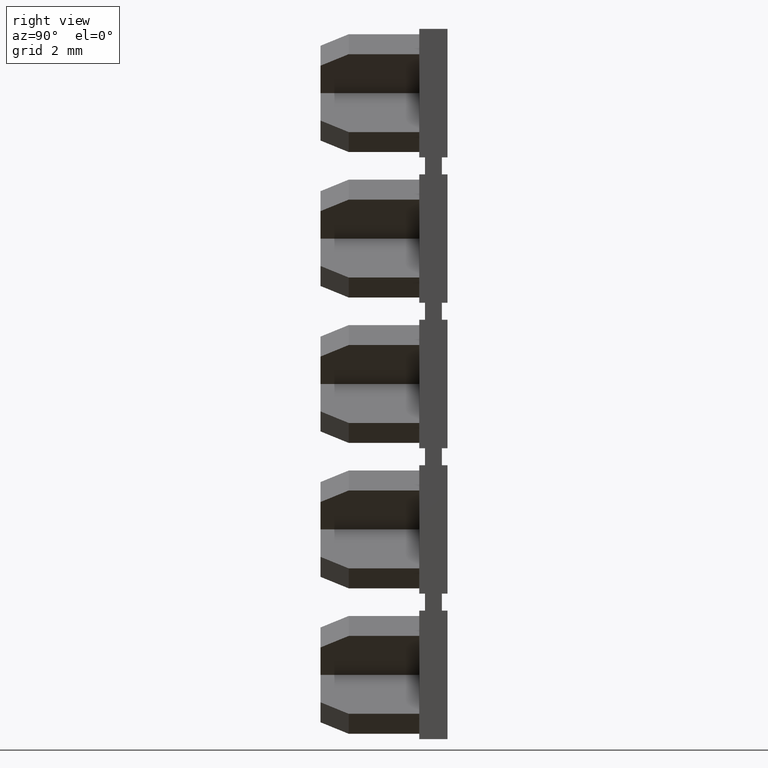
[diagram: clean part render]
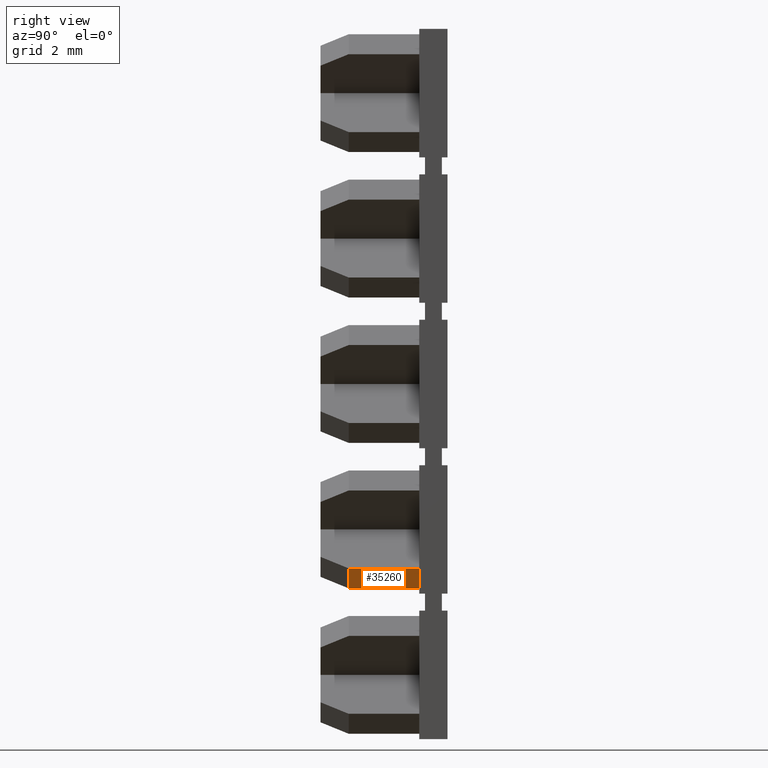
[diagram: same view with one face highlighted and labeled with its STEP entity id]
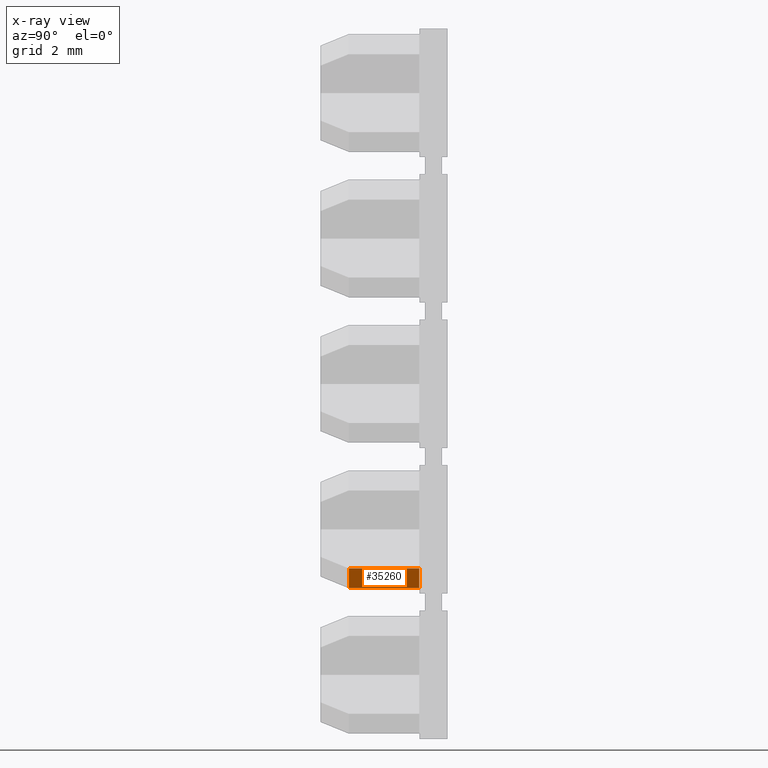
[diagram: x-ray of the same camera — body ghosted, the highlighted face saturated]
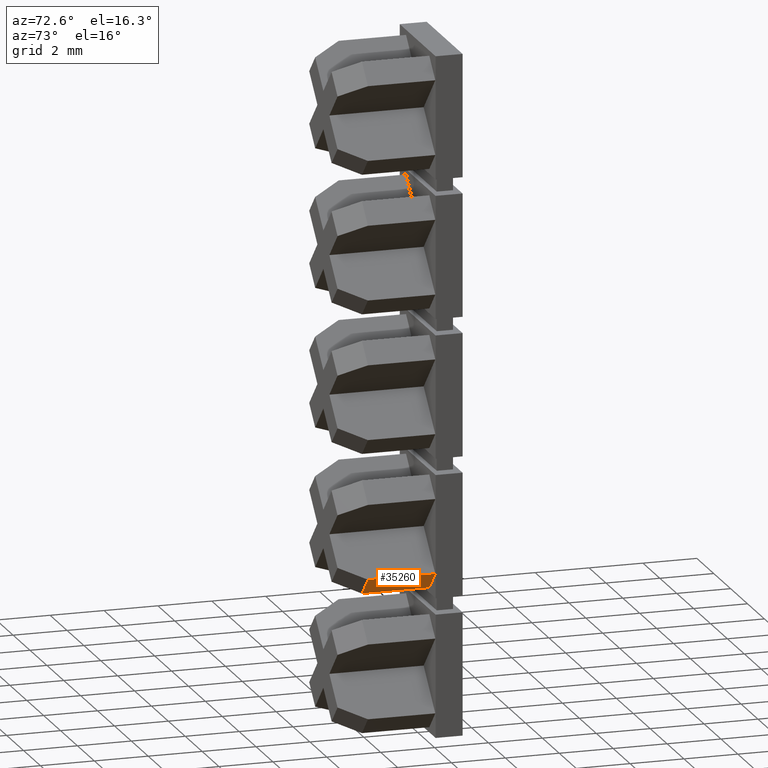
[diagram: same view with one face highlighted and labeled with its STEP entity id]
A machine part, right view. The second image highlights one B-rep face of the part: STEP entity #35260.
The next image is the same camera in x-ray: the body ghosted, the highlighted face saturated — about 0% of this face is hidden behind the body in this view.
A second angle (auxiliary view) of the same face is appended — the face is thin or edge-on in the first view.
In plain terms, the highlighted planar face has unit normal (0.7071, 0, -0.7071).
Its self-contained STEP definition (entity closure, byte-faithful):
#1220=CARTESIAN_POINT('',(16.5431323410372,-9.15000000000323,
54.8411417766862));
#1230=VERTEX_POINT('',#1220);
#1260=CARTESIAN_POINT('',(16.5431323410375,-11.4157999825918,
54.8411417766862));
#1270=DIRECTION('',(1.15463194561016E-13,-1.,-0.));
#1280=VECTOR('',#1270,1.);
#1290=LINE('',#1260,#1280);
#1300=CARTESIAN_POINT('',(16.5431323410375,-11.6500000000043,
54.8411417766862));
#1310=VERTEX_POINT('',#1300);
#1320=EDGE_CURVE('',#1230,#1310,#1290,.T.);
#24000=CARTESIAN_POINT('',(15.8360255598507,-9.15000000000323,
54.1340349954997));
#24010=VERTEX_POINT('',#24000);
#24040=CARTESIAN_POINT('',(15.371990564351,-9.15000000000323,53.67));
#24050=DIRECTION('',(0.707106781186547,-0.,0.707106781186548));
#24060=VECTOR('',#24050,1.);
#24070=LINE('',#24040,#24060);
#24080=EDGE_CURVE('',#24010,#1230,#24070,.T.);
#35030=CARTESIAN_POINT('',(16.5431323410372,-9.15000000000433,
54.8411417766862));
#35040=DIRECTION('',(0.707106781186548,8.16448078515563E-14,
-0.707106781186547));
#35050=DIRECTION('',(0.707106781186547,8.16448078515563E-14,
0.707106781186548));
#35060=AXIS2_PLACEMENT_3D('',#35030,#35040,#35050);
#35070=PLANE('',#35060);
#35080=ORIENTED_EDGE('',*,*,#1320,.T.);
#35090=ORIENTED_EDGE('',*,*,#24080,.T.);
#35100=CARTESIAN_POINT('',(15.8360255598509,-11.4157999825918,
54.1340349954997));
#35110=DIRECTION('',(1.15463194561016E-13,-1.,-1.39452223873682E-31));
#35120=VECTOR('',#35110,1.);
#35130=LINE('',#35100,#35120);
#35140=CARTESIAN_POINT('',(15.836025559851,-11.6500000000044,
54.1340349954997));
#35150=VERTEX_POINT('',#35140);
#35160=EDGE_CURVE('',#24010,#35150,#35130,.T.);
#35170=ORIENTED_EDGE('',*,*,#35160,.F.);
#35180=CARTESIAN_POINT('',(15.3719905643513,-11.6500000000045,53.67));
#35190=DIRECTION('',(0.707106781186548,8.16291478855645E-14,
0.707106781186548));
#35200=VECTOR('',#35190,1.);
#35210=LINE('',#35180,#35200);
#35220=EDGE_CURVE('',#35150,#1310,#35210,.T.);
#35230=ORIENTED_EDGE('',*,*,#35220,.F.);
#35240=EDGE_LOOP('',(#35230,#35170,#35090,#35080));
#35250=FACE_OUTER_BOUND('',#35240,.T.);
#35260=ADVANCED_FACE('',(#35250),#35070,.T.);